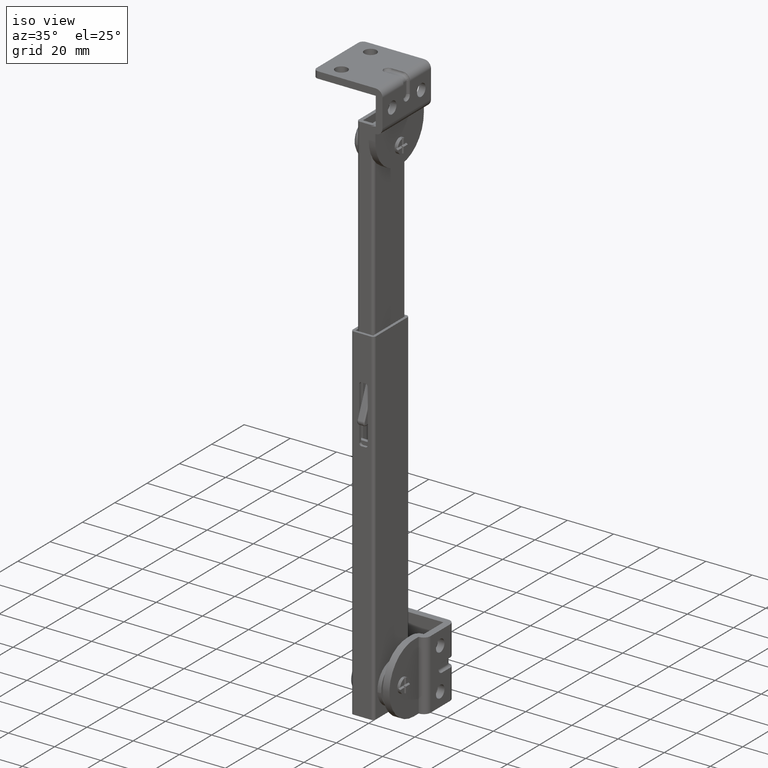
[diagram: clean part render]
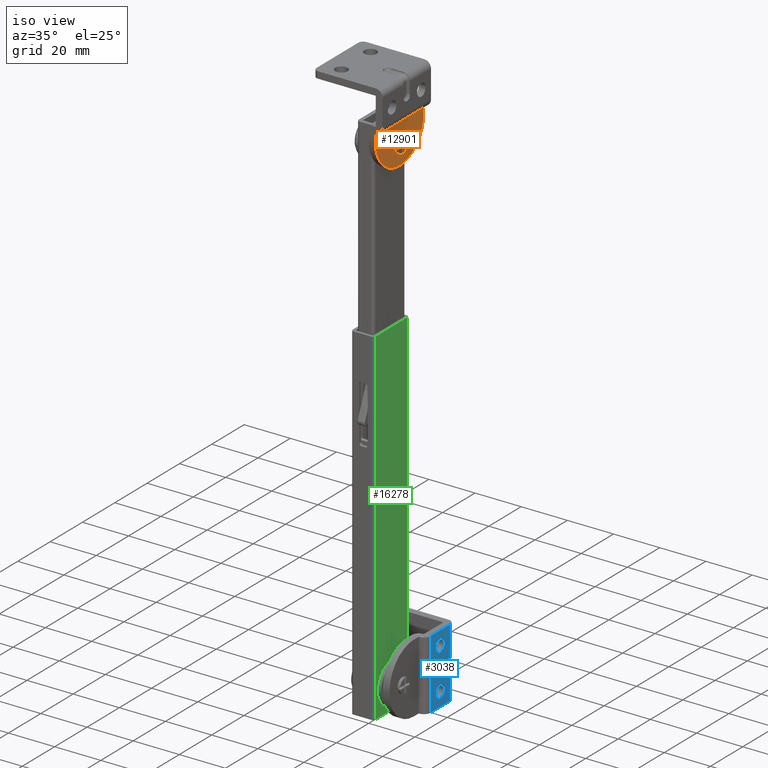
[diagram: same view with three faces highlighted in distinct colors, each labeled with its STEP entity id]
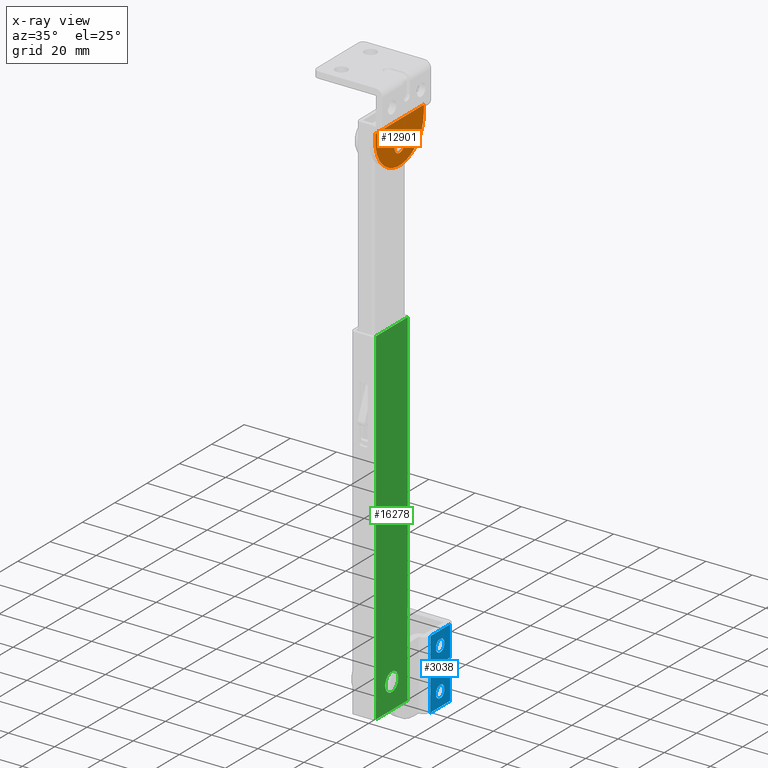
[diagram: x-ray of the same camera — body ghosted, the three highlighted faces saturated]
A machine part, iso view with three faces highlighted in distinct colors.
The next image is the same camera in x-ray (body ghosted, the three faces saturated) — at least one of them is partly hidden behind the body in this view.
Their STEP definitions:

[orange] entity #12901 — the highlighted face is a freeform B-spline surface patch.
#10122=CARTESIAN_POINT('',(13.399993999999960,3.026411952049981,211.378590407286510));
#10123=VERTEX_POINT('',#10122);
#10129=CARTESIAN_POINT('',(13.399993999999960,5.684342E-014,214.050000000000010));
#10130=VERTEX_POINT('',#10129);
#10131=CARTESIAN_POINT('',(13.399993999999960,5.684342E-014,214.050000000000010));
#10132=CARTESIAN_POINT('',(13.399993999999957,2.692230728767363,214.049999999999980));
#10133=CARTESIAN_POINT('',(13.399993999999962,3.026411952049981,211.378590407286570));
#10141=(BOUNDED_CURVE()B_SPLINE_CURVE(2,(#10131,#10132,#10133),.UNSPECIFIED.,.F.,.U.)B_SPLINE_CURVE_WITH_KNOTS((3,3),(0.500000000000000,0.728526070924198),.UNSPECIFIED.)CURVE()GEOMETRIC_REPRESENTATION_ITEM()RATIONAL_B_SPLINE_CURVE((1.0,0.732265054016882,0.954005430070758))REPRESENTATION_ITEM(''));
#10142=EDGE_CURVE('',#10130,#10123,#10141,.T.);
#10144=CARTESIAN_POINT('',(13.399993999999960,-3.049883865331112,210.973384065062310));
#10145=VERTEX_POINT('',#10144);
#10146=CARTESIAN_POINT('',(13.399993999999957,-3.049883865331112,210.973384065062250));
#10147=CARTESIAN_POINT('',(13.399993999999955,-3.049999999999943,210.986691778329000));
#10148=CARTESIAN_POINT('',(13.399993999999960,-3.049999999999943,211.0));
#10149=CARTESIAN_POINT('',(13.399993999999957,-3.049999999999942,214.050000000000010));
#10150=CARTESIAN_POINT('',(13.399993999999960,5.684342E-014,214.050000000000010));
#10158=(BOUNDED_CURVE()B_SPLINE_CURVE(2,(#10146,#10147,#10148,#10149,#10150),.UNSPECIFIED.,.F.,.U.)B_SPLINE_CURVE_WITH_KNOTS((3,2,3),(0.248460105472381,0.250000000000000,0.500000000000000),.UNSPECIFIED.)CURVE()GEOMETRIC_REPRESENTATION_ITEM()RATIONAL_B_SPLINE_CURVE((0.996414027654601,0.998195901340690,1.0,0.707106781186547,1.0))REPRESENTATION_ITEM(''));
#10159=EDGE_CURVE('',#10145,#10130,#10158,.T.);
#10239=CARTESIAN_POINT('',(13.399993999999960,5.684342E-014,207.949999999999990));
#10240=VERTEX_POINT('',#10239);
#10241=CARTESIAN_POINT('',(13.399993999999960,5.684342E-014,207.949999999999990));
#10242=CARTESIAN_POINT('',(13.399993999999957,-3.023499189007960,207.949999999999870));
#10243=CARTESIAN_POINT('',(13.399993999999962,-3.049883865331112,210.973384065062250));
#10251=(BOUNDED_CURVE()B_SPLINE_CURVE(2,(#10241,#10242,#10243),.UNSPECIFIED.,.F.,.U.)B_SPLINE_CURVE_WITH_KNOTS((3,3),(0.0,0.248460105472381),.UNSPECIFIED.)CURVE()GEOMETRIC_REPRESENTATION_ITEM()RATIONAL_B_SPLINE_CURVE((1.0,0.708910879845858,0.996414027654601))REPRESENTATION_ITEM(''));
#10252=EDGE_CURVE('',#10240,#10145,#10251,.T.);
#10254=CARTESIAN_POINT('',(13.399993999999960,3.026411952049980,211.378590407286480));
#10255=CARTESIAN_POINT('',(13.399993999999962,3.050000000000057,211.190030029931280));
#10256=CARTESIAN_POINT('',(13.399993999999960,3.050000000000057,211.0));
#10257=CARTESIAN_POINT('',(13.399993999999957,3.050000000000057,207.949999999999930));
#10258=CARTESIAN_POINT('',(13.399993999999960,5.684342E-014,207.949999999999990));
#10266=(BOUNDED_CURVE()B_SPLINE_CURVE(2,(#10254,#10255,#10256,#10257,#10258),.UNSPECIFIED.,.F.,.U.)B_SPLINE_CURVE_WITH_KNOTS((3,2,3),(0.728526070924198,0.750000000000000,1.0),.UNSPECIFIED.)CURVE()GEOMETRIC_REPRESENTATION_ITEM()RATIONAL_B_SPLINE_CURVE((0.954005430070759,0.974841727169666,1.0,0.707106781186547,1.0))REPRESENTATION_ITEM(''));
#10267=EDGE_CURVE('',#10123,#10240,#10266,.T.);
#12502=CARTESIAN_POINT('',(13.399994000000000,-15.0,218.0));
#12503=VERTEX_POINT('',#12502);
#12528=CARTESIAN_POINT('',(13.399994000000000,15.0,218.0));
#12529=VERTEX_POINT('',#12528);
#12535=CARTESIAN_POINT('',(13.399994000000000,15.000000000000060,218.0));
#12536=CARTESIAN_POINT('',(13.399994000000000,15.000000000000055,202.999999999999970));
#12537=CARTESIAN_POINT('',(13.399994000000000,5.551115E-014,203.0));
#12538=CARTESIAN_POINT('',(13.399994000000000,-14.999999999999941,202.999999999999970));
#12539=CARTESIAN_POINT('',(13.399994000000000,-14.999999999999940,218.0));
#12547=(BOUNDED_CURVE()B_SPLINE_CURVE(2,(#12535,#12536,#12537,#12538,#12539),.UNSPECIFIED.,.F.,.U.)B_SPLINE_CURVE_WITH_KNOTS((3,2,3),(0.0,0.500000000000000,1.0),.UNSPECIFIED.)CURVE()GEOMETRIC_REPRESENTATION_ITEM()RATIONAL_B_SPLINE_CURVE((1.0,0.707106781186547,1.0,0.707106781186547,1.0))REPRESENTATION_ITEM(''));
#12548=EDGE_CURVE('',#12529,#12503,#12547,.T.);
#12602=CARTESIAN_POINT('',(13.399994000000000,-15.0,221.100006000000010));
#12603=VERTEX_POINT('',#12602);
#12604=CARTESIAN_POINT('',(13.399994000000000,-15.0,221.100006000000010));
#12605=CARTESIAN_POINT('',(13.399994000000000,-15.0,218.0));
#12606=QUASI_UNIFORM_CURVE('',1,(#12604,#12605),.UNSPECIFIED.,.F.,.U.);
#12607=EDGE_CURVE('',#12603,#12503,#12606,.T.);
#12715=CARTESIAN_POINT('',(13.399994000000000,15.0,221.100006000000010));
#12716=VERTEX_POINT('',#12715);
#12722=CARTESIAN_POINT('',(13.399994000000000,15.0,221.100006000000010));
#12723=CARTESIAN_POINT('',(13.399994000000000,15.0,218.0));
#12724=QUASI_UNIFORM_CURVE('',1,(#12722,#12723),.UNSPECIFIED.,.F.,.U.);
#12725=EDGE_CURVE('',#12716,#12529,#12724,.T.);
#12880=CARTESIAN_POINT('',(13.399994000000000,16.498499941854181,202.095904735381510));
#12881=CARTESIAN_POINT('',(13.399994000000000,16.498499941854181,222.004101750098700));
#12882=CARTESIAN_POINT('',(13.399994000000000,-16.498500746516889,202.095904735381510));
#12883=CARTESIAN_POINT('',(13.399994000000000,-16.498500746516889,222.004101750098700));
#12884=B_SPLINE_SURFACE_WITH_KNOTS('',1,1,((#12880,#12882),(#12881,#12883)),.UNSPECIFIED.,.F.,.F.,.U.,(2,2),(2,2),(0.0,19.908197014717160),(0.0,32.997000688371060),.UNSPECIFIED.);
#12885=ORIENTED_EDGE('',*,*,#12725,.F.);
#12886=CARTESIAN_POINT('',(13.399994000000000,15.0,221.100006000000010));
#12887=CARTESIAN_POINT('',(13.399994000000000,-15.0,221.100006000000010));
#12888=QUASI_UNIFORM_CURVE('',1,(#12886,#12887),.UNSPECIFIED.,.F.,.U.);
#12889=EDGE_CURVE('',#12716,#12603,#12888,.T.);
#12890=ORIENTED_EDGE('',*,*,#12889,.T.);
#12891=ORIENTED_EDGE('',*,*,#12607,.T.);
#12892=ORIENTED_EDGE('',*,*,#12548,.F.);
#12893=EDGE_LOOP('',(#12885,#12890,#12891,#12892));
#12894=FACE_OUTER_BOUND('',#12893,.T.);
#12895=ORIENTED_EDGE('',*,*,#10252,.T.);
#12896=ORIENTED_EDGE('',*,*,#10159,.T.);
#12897=ORIENTED_EDGE('',*,*,#10142,.T.);
#12898=ORIENTED_EDGE('',*,*,#10267,.T.);
#12899=EDGE_LOOP('',(#12895,#12896,#12897,#12898));
#12900=FACE_BOUND('',#12899,.T.);
#12901=ADVANCED_FACE('',(#12894,#12900),#12884,.T.);

[blue] entity #3038 — the highlighted face is a freeform B-spline surface patch.
#650=CARTESIAN_POINT('',(17.699999999999999,19.161778631391819,-11.645057215718589));
#651=VERTEX_POINT('',#650);
#657=CARTESIAN_POINT('',(17.699999999999999,21.649999999999999,-9.0));
#658=VERTEX_POINT('',#657);
#659=CARTESIAN_POINT('',(17.699999999999999,21.649999999999999,-9.0));
#660=CARTESIAN_POINT('',(17.699999999999992,21.649999999999999,-11.492871074232387));
#661=CARTESIAN_POINT('',(17.699999999999999,19.161778631391819,-11.645057215718593));
#669=(BOUNDED_CURVE()B_SPLINE_CURVE(2,(#659,#660,#661),.UNSPECIFIED.,.F.,.U.)B_SPLINE_CURVE_WITH_KNOTS((3,3),(0.500000000000000,0.739332962030030),.UNSPECIFIED.)CURVE()GEOMETRIC_REPRESENTATION_ITEM()RATIONAL_B_SPLINE_CURVE((1.0,0.719603993531467,0.976072041218978))REPRESENTATION_ITEM(''));
#670=EDGE_CURVE('',#658,#651,#669,.T.);
#672=CARTESIAN_POINT('',(17.699999999999999,18.687209276420059,-6.368524755343053));
#673=VERTEX_POINT('',#672);
#674=CARTESIAN_POINT('',(17.699999999999999,18.687209276420067,-6.368524755343053));
#675=CARTESIAN_POINT('',(17.700000000000003,18.843056081164523,-6.350000000000000));
#676=CARTESIAN_POINT('',(17.699999999999999,19.0,-6.350000000000000));
#677=CARTESIAN_POINT('',(17.699999999999996,21.649999999999995,-6.350000000000000));
#678=CARTESIAN_POINT('',(17.699999999999999,21.649999999999999,-9.0));
#686=(BOUNDED_CURVE()B_SPLINE_CURVE(2,(#674,#675,#676,#677,#678),.UNSPECIFIED.,.F.,.U.)B_SPLINE_CURVE_WITH_KNOTS((3,2,3),(0.229562473292207,0.250000000000000,0.500000000000000),.UNSPECIFIED.)CURVE()GEOMETRIC_REPRESENTATION_ITEM()RATIONAL_B_SPLINE_CURVE((0.956026753749939,0.976055948071874,1.0,0.707106781186548,1.0))REPRESENTATION_ITEM(''));
#687=EDGE_CURVE('',#673,#658,#686,.T.);
#731=CARTESIAN_POINT('',(17.699999999999999,16.350000000000001,-9.0));
#732=VERTEX_POINT('',#731);
#733=CARTESIAN_POINT('',(17.699999999999999,16.350000000000001,-9.0));
#734=CARTESIAN_POINT('',(17.699999999999992,16.350000000000009,-6.646337509362538));
#735=CARTESIAN_POINT('',(17.699999999999992,18.687209276420059,-6.368524755343053));
#743=(BOUNDED_CURVE()B_SPLINE_CURVE(2,(#733,#734,#735),.UNSPECIFIED.,.F.,.U.)B_SPLINE_CURVE_WITH_KNOTS((3,3),(0.0,0.229562473292207),.UNSPECIFIED.)CURVE()GEOMETRIC_REPRESENTATION_ITEM()RATIONAL_B_SPLINE_CURVE((1.0,0.731050833114674,0.956026753749939))REPRESENTATION_ITEM(''));
#744=EDGE_CURVE('',#732,#673,#743,.T.);
#746=CARTESIAN_POINT('',(17.700000000000006,19.161778631391819,-11.645057215718589));
#747=CARTESIAN_POINT('',(17.700000000000003,19.080964824370270,-11.650000000000004));
#748=CARTESIAN_POINT('',(17.699999999999999,19.0,-11.650000000000000));
#749=CARTESIAN_POINT('',(17.699999999999996,16.349999999999998,-11.649999999999999));
#750=CARTESIAN_POINT('',(17.699999999999999,16.350000000000001,-9.0));
#758=(BOUNDED_CURVE()B_SPLINE_CURVE(2,(#746,#747,#748,#749,#750),.UNSPECIFIED.,.F.,.U.)B_SPLINE_CURVE_WITH_KNOTS((3,2,3),(0.739332962030031,0.750000000000000,1.0),.UNSPECIFIED.)CURVE()GEOMETRIC_REPRESENTATION_ITEM()RATIONAL_B_SPLINE_CURVE((0.976072041218979,0.987502787655081,1.0,0.707106781186548,1.0))REPRESENTATION_ITEM(''));
#759=EDGE_CURVE('',#651,#732,#758,.T.);
#836=CARTESIAN_POINT('',(17.699999999999999,19.161778631391819,6.354942784281409));
#837=VERTEX_POINT('',#836);
#843=CARTESIAN_POINT('',(17.699999999999999,21.649999999999999,9.0));
#844=VERTEX_POINT('',#843);
#845=CARTESIAN_POINT('',(17.699999999999999,21.649999999999999,9.0));
#846=CARTESIAN_POINT('',(17.699999999999992,21.649999999999999,6.507128925767611));
#847=CARTESIAN_POINT('',(17.699999999999999,19.161778631391819,6.354942784281410));
#855=(BOUNDED_CURVE()B_SPLINE_CURVE(2,(#845,#846,#847),.UNSPECIFIED.,.F.,.U.)B_SPLINE_CURVE_WITH_KNOTS((3,3),(0.500000000000000,0.739332962030030),.UNSPECIFIED.)CURVE()GEOMETRIC_REPRESENTATION_ITEM()RATIONAL_B_SPLINE_CURVE((1.0,0.719603993531467,0.976072041218978))REPRESENTATION_ITEM(''));
#856=EDGE_CURVE('',#844,#837,#855,.T.);
#858=CARTESIAN_POINT('',(17.699999999999999,18.687209276420059,11.631475244656940));
#859=VERTEX_POINT('',#858);
#860=CARTESIAN_POINT('',(17.699999999999999,18.687209276420067,11.631475244656940));
#861=CARTESIAN_POINT('',(17.700000000000003,18.843056081164523,11.649999999999997));
#862=CARTESIAN_POINT('',(17.699999999999999,19.0,11.650000000000000));
#863=CARTESIAN_POINT('',(17.699999999999996,21.649999999999995,11.649999999999999));
#864=CARTESIAN_POINT('',(17.699999999999999,21.649999999999999,9.0));
#872=(BOUNDED_CURVE()B_SPLINE_CURVE(2,(#860,#861,#862,#863,#864),.UNSPECIFIED.,.F.,.U.)B_SPLINE_CURVE_WITH_KNOTS((3,2,3),(0.229562473292207,0.250000000000000,0.500000000000000),.UNSPECIFIED.)CURVE()GEOMETRIC_REPRESENTATION_ITEM()RATIONAL_B_SPLINE_CURVE((0.956026753749939,0.976055948071874,1.0,0.707106781186548,1.0))REPRESENTATION_ITEM(''));
#873=EDGE_CURVE('',#859,#844,#872,.T.);
#917=CARTESIAN_POINT('',(17.699999999999999,16.350000000000001,9.0));
#918=VERTEX_POINT('',#917);
#919=CARTESIAN_POINT('',(17.699999999999999,16.350000000000001,9.0));
#920=CARTESIAN_POINT('',(17.699999999999992,16.350000000000009,11.353662490637461));
#921=CARTESIAN_POINT('',(17.699999999999992,18.687209276420059,11.631475244656942));
#929=(BOUNDED_CURVE()B_SPLINE_CURVE(2,(#919,#920,#921),.UNSPECIFIED.,.F.,.U.)B_SPLINE_CURVE_WITH_KNOTS((3,3),(0.0,0.229562473292207),.UNSPECIFIED.)CURVE()GEOMETRIC_REPRESENTATION_ITEM()RATIONAL_B_SPLINE_CURVE((1.0,0.731050833114674,0.956026753749939))REPRESENTATION_ITEM(''));
#930=EDGE_CURVE('',#918,#859,#929,.T.);
#932=CARTESIAN_POINT('',(17.700000000000006,19.161778631391819,6.354942784281409));
#933=CARTESIAN_POINT('',(17.700000000000003,19.080964824370270,6.349999999999999));
#934=CARTESIAN_POINT('',(17.699999999999999,19.0,6.350000000000000));
#935=CARTESIAN_POINT('',(17.699999999999996,16.349999999999998,6.350000000000000));
#936=CARTESIAN_POINT('',(17.699999999999999,16.350000000000001,9.0));
#944=(BOUNDED_CURVE()B_SPLINE_CURVE(2,(#932,#933,#934,#935,#936),.UNSPECIFIED.,.F.,.U.)B_SPLINE_CURVE_WITH_KNOTS((3,2,3),(0.739332962030031,0.750000000000000,1.0),.UNSPECIFIED.)CURVE()GEOMETRIC_REPRESENTATION_ITEM()RATIONAL_B_SPLINE_CURVE((0.976072041218979,0.987502787655081,1.0,0.707106781186548,1.0))REPRESENTATION_ITEM(''));
#945=EDGE_CURVE('',#837,#918,#944,.T.);
#1616=CARTESIAN_POINT('',(17.699999999999999,19.999993912733551,1.999999999999890));
#1617=VERTEX_POINT('',#1616);
#1623=CARTESIAN_POINT('',(17.699999999999999,19.999993912733551,-2.0));
#1624=VERTEX_POINT('',#1623);
#1625=CARTESIAN_POINT('',(17.699999999999999,19.999993912733551,1.999999999999889));
#1626=CARTESIAN_POINT('',(17.699999999999996,17.999993912733551,1.999999999999889));
#1627=CARTESIAN_POINT('',(17.699999999999999,17.999993912733551,-1.110223E-013));
#1628=CARTESIAN_POINT('',(17.699999999999996,17.999993912733551,-2.000000000000112));
#1629=CARTESIAN_POINT('',(17.699999999999999,19.999993912733551,-2.0));
#1637=(BOUNDED_CURVE()B_SPLINE_CURVE(2,(#1625,#1626,#1627,#1628,#1629),.UNSPECIFIED.,.F.,.U.)B_SPLINE_CURVE_WITH_KNOTS((3,2,3),(0.0,0.500000000000000,1.0),.UNSPECIFIED.)CURVE()GEOMETRIC_REPRESENTATION_ITEM()RATIONAL_B_SPLINE_CURVE((1.0,0.707106781186548,1.0,0.707106781186548,1.0))REPRESENTATION_ITEM(''));
#1638=EDGE_CURVE('',#1617,#1624,#1637,.T.);
#1655=CARTESIAN_POINT('',(17.699999999999999,25.094100801407951,-2.0));
#1656=VERTEX_POINT('',#1655);
#1657=CARTESIAN_POINT('',(17.699999999999999,25.094100801407951,-2.0));
#1658=CARTESIAN_POINT('',(17.699999999999999,19.999993912733551,-2.0));
#1659=QUASI_UNIFORM_CURVE('',1,(#1657,#1658),.UNSPECIFIED.,.F.,.U.);
#1660=EDGE_CURVE('',#1656,#1624,#1659,.T.);
#1662=CARTESIAN_POINT('',(17.699999999999999,25.105899198392450,-2.0));
#1663=VERTEX_POINT('',#1662);
#1664=CARTESIAN_POINT('',(17.699999999999989,25.105899198392450,-2.0));
#1665=CARTESIAN_POINT('',(17.700012000212016,25.099999999900202,-2.000000000000000));
#1666=CARTESIAN_POINT('',(17.699999999999989,25.094100801407951,-2.0));
#1674=(BOUNDED_CURVE()B_SPLINE_CURVE(2,(#1664,#1665,#1666),.UNSPECIFIED.,.F.,.U.)CURVE()GEOMETRIC_REPRESENTATION_ITEM()QUASI_UNIFORM_CURVE()RATIONAL_B_SPLINE_CURVE((1.0,0.999997931000068,1.0))REPRESENTATION_ITEM(''));
#1675=EDGE_CURVE('',#1663,#1656,#1674,.T.);
#1717=CARTESIAN_POINT('',(17.699999999999999,25.105899198392450,1.999999999999890));
#1718=VERTEX_POINT('',#1717);
#1732=CARTESIAN_POINT('',(17.699999999999999,25.094100801407951,1.999999999999890));
#1733=VERTEX_POINT('',#1732);
#1734=CARTESIAN_POINT('',(17.699999999999989,25.105899198392450,1.999999999999890));
#1735=CARTESIAN_POINT('',(17.700012000212016,25.099999999900202,1.999999999999890));
#1736=CARTESIAN_POINT('',(17.699999999999989,25.094100801407951,1.999999999999890));
#1744=(BOUNDED_CURVE()B_SPLINE_CURVE(2,(#1734,#1735,#1736),.UNSPECIFIED.,.F.,.U.)CURVE()GEOMETRIC_REPRESENTATION_ITEM()QUASI_UNIFORM_CURVE()RATIONAL_B_SPLINE_CURVE((1.0,0.999997931000068,1.0))REPRESENTATION_ITEM(''));
#1745=EDGE_CURVE('',#1718,#1733,#1744,.T.);
#1747=CARTESIAN_POINT('',(17.699999999999999,25.094100801407951,1.999999999999890));
#1748=CARTESIAN_POINT('',(17.699999999999999,19.999993912733551,1.999999999999890));
#1749=QUASI_UNIFORM_CURVE('',1,(#1747,#1748),.UNSPECIFIED.,.F.,.U.);
#1750=EDGE_CURVE('',#1733,#1617,#1749,.T.);
#2573=CARTESIAN_POINT('',(17.699999999999999,13.005899149434001,15.0));
#2574=VERTEX_POINT('',#2573);
#2590=CARTESIAN_POINT('',(17.699999999999999,25.105899198392450,15.0));
#2591=VERTEX_POINT('',#2590);
#2592=CARTESIAN_POINT('',(17.699999999999999,25.105899198392450,15.0));
#2593=CARTESIAN_POINT('',(17.699999999999999,13.005899149434001,15.0));
#2594=QUASI_UNIFORM_CURVE('',1,(#2592,#2593),.UNSPECIFIED.,.F.,.U.);
#2595=EDGE_CURVE('',#2591,#2574,#2594,.T.);
#2633=CARTESIAN_POINT('',(17.699999999999999,25.105899198392450,-15.0));
#2634=VERTEX_POINT('',#2633);
#2648=CARTESIAN_POINT('',(17.699999999999999,13.005899149434001,-15.0));
#2649=VERTEX_POINT('',#2648);
#2650=CARTESIAN_POINT('',(17.699999999999999,25.105899198392450,-15.0));
#2651=CARTESIAN_POINT('',(17.699999999999999,13.005899149434001,-15.0));
#2652=QUASI_UNIFORM_CURVE('',1,(#2650,#2651),.UNSPECIFIED.,.F.,.U.);
#2653=EDGE_CURVE('',#2634,#2649,#2652,.T.);
#2890=CARTESIAN_POINT('',(17.699999999999999,13.005899149434001,-15.0));
#2891=CARTESIAN_POINT('',(17.699999999999999,13.005899149434001,15.0));
#2892=QUASI_UNIFORM_CURVE('',1,(#2890,#2891),.UNSPECIFIED.,.F.,.U.);
#2893=EDGE_CURVE('',#2649,#2574,#2892,.T.);
#2919=CARTESIAN_POINT('',(17.699999999999999,25.105899198392450,1.999999999999890));
#2920=CARTESIAN_POINT('',(17.699999999999999,25.105899198392450,15.0));
#2921=QUASI_UNIFORM_CURVE('',1,(#2919,#2920),.UNSPECIFIED.,.F.,.U.);
#2922=EDGE_CURVE('',#1718,#2591,#2921,.T.);
#3005=CARTESIAN_POINT('',(17.699999999999999,12.401504397612960,-16.498499941854181));
#3006=CARTESIAN_POINT('',(17.699999999999999,25.710294491125641,-16.498499941854181));
#3007=CARTESIAN_POINT('',(17.699999999999999,12.401504397612960,16.498500746516889));
#3008=CARTESIAN_POINT('',(17.699999999999999,25.710294491125641,16.498500746516889));
#3009=B_SPLINE_SURFACE_WITH_KNOTS('',1,1,((#3005,#3007),(#3006,#3008)),.UNSPECIFIED.,.F.,.F.,.U.,(2,2),(2,2),(0.0,13.308790093512680),(0.0,32.997000688371060),.UNSPECIFIED.);
#3010=ORIENTED_EDGE('',*,*,#2595,.T.);
#3011=ORIENTED_EDGE('',*,*,#2893,.F.);
#3012=ORIENTED_EDGE('',*,*,#2653,.F.);
#3013=CARTESIAN_POINT('',(17.699999999999999,25.105899198392450,-15.0));
#3014=CARTESIAN_POINT('',(17.699999999999999,25.105899198392450,-2.0));
#3015=QUASI_UNIFORM_CURVE('',1,(#3013,#3014),.UNSPECIFIED.,.F.,.U.);
#3016=EDGE_CURVE('',#2634,#1663,#3015,.T.);
#3017=ORIENTED_EDGE('',*,*,#3016,.T.);
#3018=ORIENTED_EDGE('',*,*,#1675,.T.);
#3019=ORIENTED_EDGE('',*,*,#1660,.T.);
#3020=ORIENTED_EDGE('',*,*,#1638,.F.);
#3021=ORIENTED_EDGE('',*,*,#1750,.F.);
#3022=ORIENTED_EDGE('',*,*,#1745,.F.);
#3023=ORIENTED_EDGE('',*,*,#2922,.T.);
#3024=EDGE_LOOP('',(#3010,#3011,#3012,#3017,#3018,#3019,#3020,#3021,#3022,#3023));
#3025=FACE_OUTER_BOUND('',#3024,.T.);
#3026=ORIENTED_EDGE('',*,*,#856,.T.);
#3027=ORIENTED_EDGE('',*,*,#945,.T.);
#3028=ORIENTED_EDGE('',*,*,#930,.T.);
#3029=ORIENTED_EDGE('',*,*,#873,.T.);
#3030=EDGE_LOOP('',(#3026,#3027,#3028,#3029));
#3031=FACE_BOUND('',#3030,.T.);
#3032=ORIENTED_EDGE('',*,*,#670,.T.);
#3033=ORIENTED_EDGE('',*,*,#759,.T.);
#3034=ORIENTED_EDGE('',*,*,#744,.T.);
#3035=ORIENTED_EDGE('',*,*,#687,.T.);
#3036=EDGE_LOOP('',(#3032,#3033,#3034,#3035));
#3037=FACE_BOUND('',#3036,.T.);
#3038=ADVANCED_FACE('',(#3025,#3031,#3037),#3009,.T.);

[green] entity #16278 — the highlighted face is a freeform B-spline surface patch.
#14692=CARTESIAN_POINT('',(10.0,-3.972038105439729,0.472136938752691));
#14693=VERTEX_POINT('',#14692);
#14699=CARTESIAN_POINT('',(10.0,0.0,-4.0));
#14700=VERTEX_POINT('',#14699);
#14701=CARTESIAN_POINT('',(10.0,-3.972038105439729,0.472136938752691));
#14702=CARTESIAN_POINT('',(10.0,-4.0,0.236896478734626));
#14703=CARTESIAN_POINT('',(10.0,-4.0,0.0));
#14704=CARTESIAN_POINT('',(10.000000000000002,-4.000000000000000,-4.000000000000000));
#14705=CARTESIAN_POINT('',(10.0,0.0,-4.0));
#14713=(BOUNDED_CURVE()B_SPLINE_CURVE(2,(#14701,#14702,#14703,#14704,#14705),.UNSPECIFIED.,.F.,.U.)B_SPLINE_CURVE_WITH_KNOTS((3,2,3),(0.229562473504951,0.250000000000000,0.500000000000000),.UNSPECIFIED.)CURVE()GEOMETRIC_REPRESENTATION_ITEM()RATIONAL_B_SPLINE_CURVE((0.956026754166927,0.976055948321120,1.0,0.707106781186548,1.0))REPRESENTATION_ITEM(''));
#14714=EDGE_CURVE('',#14693,#14700,#14713,.T.);
#14716=CARTESIAN_POINT('',(10.0,3.992539193665175,-0.244194158503905));
#14717=VERTEX_POINT('',#14716);
#14718=CARTESIAN_POINT('',(10.0,0.0,-4.0));
#14719=CARTESIAN_POINT('',(9.999999999999998,3.762824266934500,-4.000000000000001));
#14720=CARTESIAN_POINT('',(10.0,3.992539193665174,-0.244194158503905));
#14728=(BOUNDED_CURVE()B_SPLINE_CURVE(2,(#14718,#14719,#14720),.UNSPECIFIED.,.F.,.U.)B_SPLINE_CURVE_WITH_KNOTS((3,3),(0.500000000000000,0.739332962210466),.UNSPECIFIED.)CURVE()GEOMETRIC_REPRESENTATION_ITEM()RATIONAL_B_SPLINE_CURVE((1.0,0.719603993320073,0.976072041605686))REPRESENTATION_ITEM(''));
#14729=EDGE_CURVE('',#14700,#14717,#14728,.T.);
#14803=CARTESIAN_POINT('',(10.0,0.0,4.0));
#14804=VERTEX_POINT('',#14803);
#14805=CARTESIAN_POINT('',(10.0,3.992539193665175,-0.244194158503905));
#14806=CARTESIAN_POINT('',(9.999999999999998,4.0,-0.122211053559855));
#14807=CARTESIAN_POINT('',(10.0,4.0,0.0));
#14808=CARTESIAN_POINT('',(10.000000000000002,4.000000000000000,4.000000000000000));
#14809=CARTESIAN_POINT('',(10.0,0.0,4.0));
#14817=(BOUNDED_CURVE()B_SPLINE_CURVE(2,(#14805,#14806,#14807,#14808,#14809),.UNSPECIFIED.,.F.,.U.)B_SPLINE_CURVE_WITH_KNOTS((3,2,3),(0.739332962210465,0.750000000000000,1.0),.UNSPECIFIED.)CURVE()GEOMETRIC_REPRESENTATION_ITEM()RATIONAL_B_SPLINE_CURVE((0.976072041605684,0.987502787866473,1.0,0.707106781186548,1.0))REPRESENTATION_ITEM(''));
#14818=EDGE_CURVE('',#14717,#14804,#14817,.T.);
#14820=CARTESIAN_POINT('',(10.0,0.0,4.0));
#14821=CARTESIAN_POINT('',(10.000000000000002,-3.552698103579106,4.000000000000000));
#14822=CARTESIAN_POINT('',(10.0,-3.972038105439729,0.472136938752691));
#14830=(BOUNDED_CURVE()B_SPLINE_CURVE(2,(#14820,#14821,#14822),.UNSPECIFIED.,.F.,.U.)B_SPLINE_CURVE_WITH_KNOTS((3,3),(0.0,0.229562473504951),.UNSPECIFIED.)CURVE()GEOMETRIC_REPRESENTATION_ITEM()RATIONAL_B_SPLINE_CURVE((1.0,0.731050832865428,0.956026754166927))REPRESENTATION_ITEM(''));
#14831=EDGE_CURVE('',#14804,#14693,#14830,.T.);
#15745=CARTESIAN_POINT('',(10.0,-9.802686279935349,139.0));
#15746=VERTEX_POINT('',#15745);
#15760=CARTESIAN_POINT('',(10.0,9.802682279935349,139.0));
#15761=VERTEX_POINT('',#15760);
#15762=CARTESIAN_POINT('',(10.0,-9.802686279935349,139.0));
#15763=CARTESIAN_POINT('',(10.0,9.802682279935349,139.0));
#15764=QUASI_UNIFORM_CURVE('',1,(#15762,#15763),.UNSPECIFIED.,.F.,.U.);
#15765=EDGE_CURVE('',#15746,#15761,#15764,.T.);
#15915=CARTESIAN_POINT('',(10.0,9.802682279935349,-11.0));
#15916=VERTEX_POINT('',#15915);
#15930=CARTESIAN_POINT('',(10.0,-9.802686279935349,-11.0));
#15931=VERTEX_POINT('',#15930);
#15932=CARTESIAN_POINT('',(10.0,-9.802686279935349,-11.0));
#15933=CARTESIAN_POINT('',(10.0,9.802682279935349,-11.0));
#15934=QUASI_UNIFORM_CURVE('',1,(#15932,#15933),.UNSPECIFIED.,.F.,.U.);
#15935=EDGE_CURVE('',#15931,#15916,#15934,.T.);
#16056=CARTESIAN_POINT('',(10.0,9.802682279935349,-11.0));
#16057=CARTESIAN_POINT('',(10.0,9.802682279935349,139.0));
#16058=QUASI_UNIFORM_CURVE('',1,(#16056,#16057),.UNSPECIFIED.,.F.,.U.);
#16059=EDGE_CURVE('',#15916,#15761,#16058,.T.);
#16091=CARTESIAN_POINT('',(10.0,-9.802686279935349,-11.0));
#16092=CARTESIAN_POINT('',(10.0,-9.802686279935349,139.0));
#16093=QUASI_UNIFORM_CURVE('',1,(#16091,#16092),.UNSPECIFIED.,.F.,.U.);
#16094=EDGE_CURVE('',#15931,#15746,#16093,.T.);
#16261=CARTESIAN_POINT('',(10.0,10.781970033419540,146.492499709270900));
#16262=CARTESIAN_POINT('',(10.0,10.781970033419540,-18.492503732584421));
#16263=CARTESIAN_POINT('',(10.0,-10.781974909847809,146.492499709270900));
#16264=CARTESIAN_POINT('',(10.0,-10.781974909847809,-18.492503732584421));
#16265=B_SPLINE_SURFACE_WITH_KNOTS('',1,1,((#16261,#16263),(#16262,#16264)),.UNSPECIFIED.,.F.,.F.,.U.,(2,2),(2,2),(0.0,164.985003441855300),(0.0,21.563944943267341),.UNSPECIFIED.);
#16266=ORIENTED_EDGE('',*,*,#15765,.F.);
#16267=ORIENTED_EDGE('',*,*,#16094,.F.);
#16268=ORIENTED_EDGE('',*,*,#15935,.T.);
#16269=ORIENTED_EDGE('',*,*,#16059,.T.);
#16270=EDGE_LOOP('',(#16266,#16267,#16268,#16269));
#16271=FACE_OUTER_BOUND('',#16270,.T.);
#16272=ORIENTED_EDGE('',*,*,#14729,.F.);
#16273=ORIENTED_EDGE('',*,*,#14714,.F.);
#16274=ORIENTED_EDGE('',*,*,#14831,.F.);
#16275=ORIENTED_EDGE('',*,*,#14818,.F.);
#16276=EDGE_LOOP('',(#16272,#16273,#16274,#16275));
#16277=FACE_BOUND('',#16276,.T.);
#16278=ADVANCED_FACE('',(#16271,#16277),#16265,.F.);